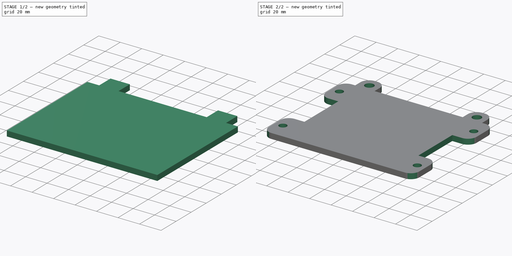
[diagram: build sequence overview — one tinted view per stage of 2, left to right]
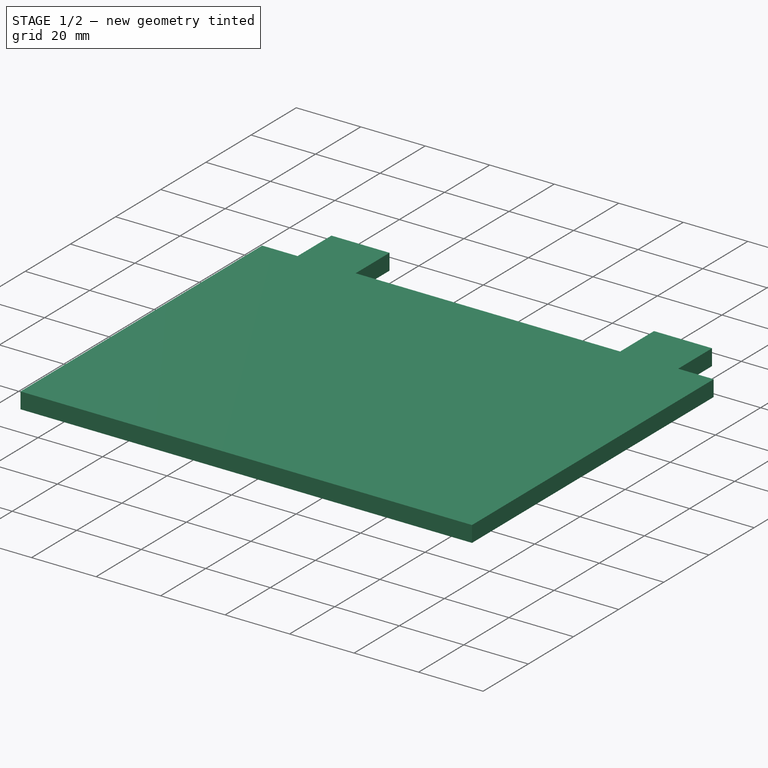
[diagram: stage 1 of 2 — iso view after this stage's code; geometry added in this stage tinted green]
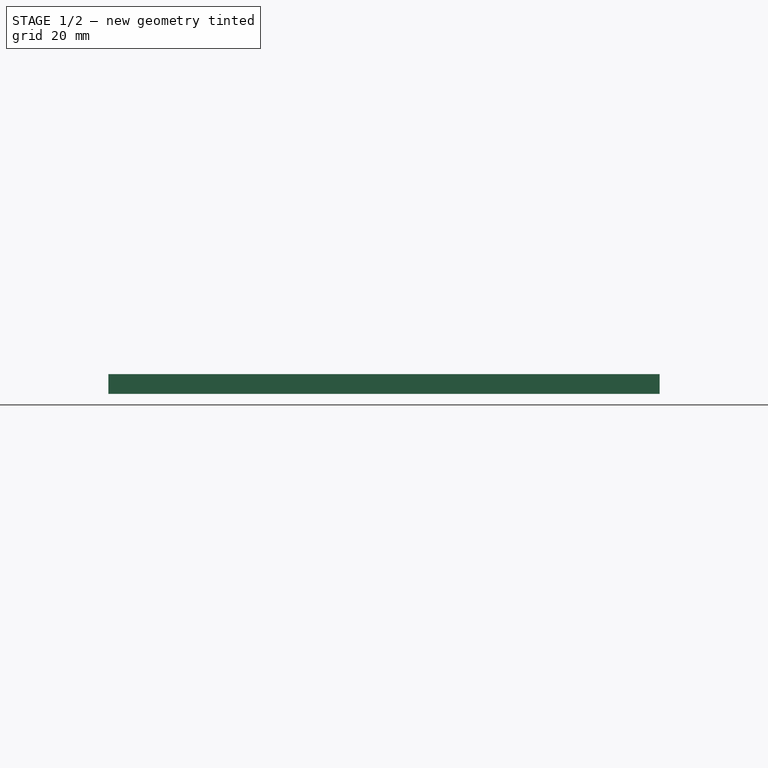
[diagram: stage 1 of 2 — front view after this stage's code; geometry added in this stage tinted green]
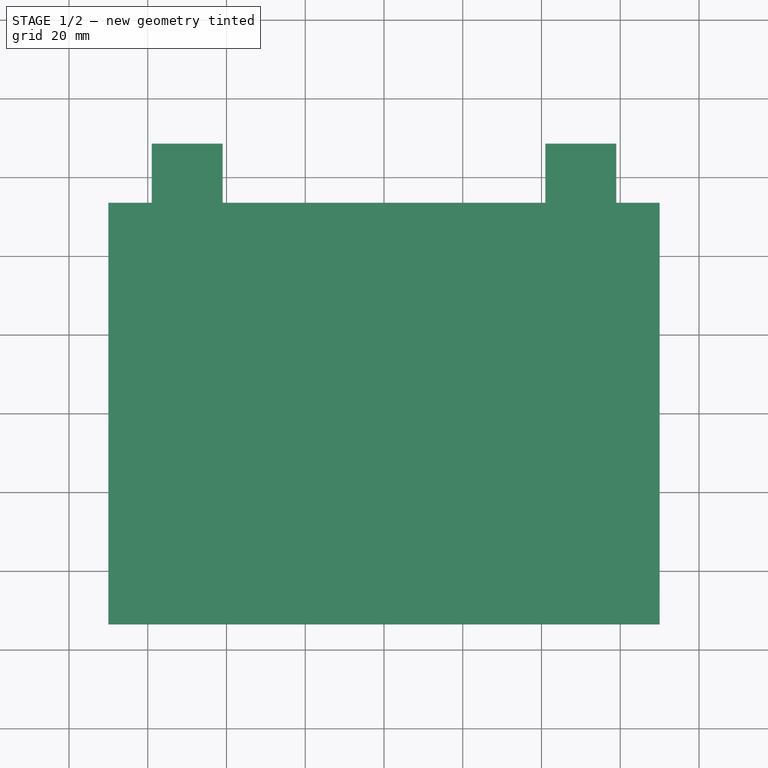
[diagram: stage 1 of 2 — top view after this stage's code; geometry added in this stage tinted green]
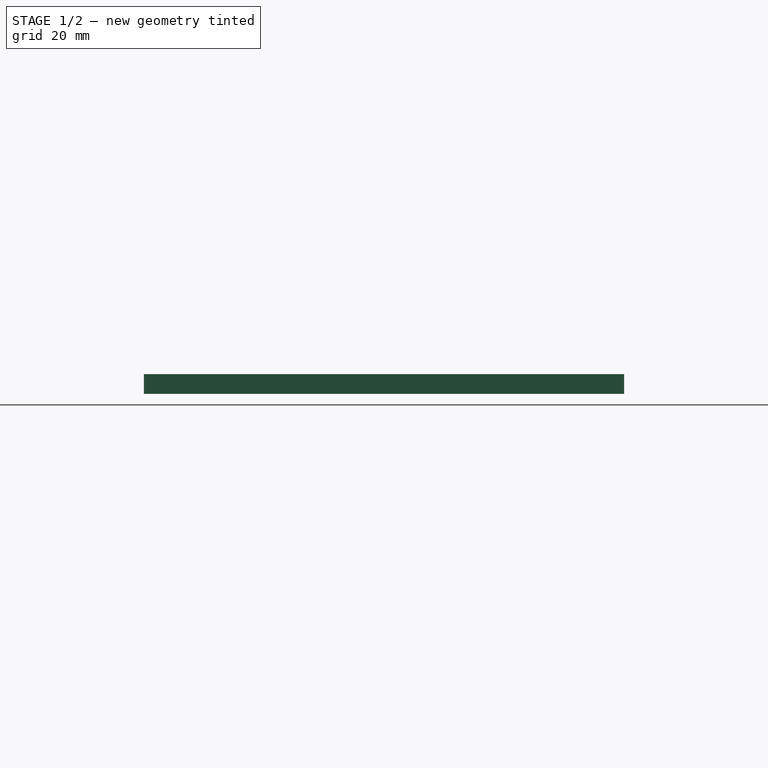
[diagram: stage 1 of 2 — right view after this stage's code; geometry added in this stage tinted green]
FCSTD DOCUMENT  (FreeCAD 0.20R29410 (Git))
Label: LSS-B
License: All rights reserved
LicenseURL: http://en.wikipedia.org/wiki/All_rights_reserved
objects: Sketcher::SketchObject×3, PartDesign::Pad×2, PartDesign::Pocket×1, PartDesign::Fillet×1, PartDesign::Body×1
note: 12 computed .brp shape members not serialized (recipe doc carries the construction recipe); baked Part::Feature solids carry a one-line shape summary decoded from their .brp

FEATURE [Sketcher::SketchObject] Sketch
  FullyConstrained = true
  MapMode = 5
  Support = -> [XY_Plane]
  sketch-geometry (4):
    g0: LineSegment StartX=-70 StartY=53.5 StartZ=0 EndX=70 EndY=53.5 EndZ=0
    g1: LineSegment StartX=70 StartY=53.5 StartZ=0 EndX=70 EndY=-53.5 EndZ=0
    g2: LineSegment StartX=70 StartY=-53.5 StartZ=0 EndX=-70 EndY=-53.5 EndZ=0
    g3: LineSegment StartX=-70 StartY=-53.5 StartZ=0 EndX=-70 EndY=53.5 EndZ=0
  constraints (11):
    c: Coincident(g0,g1)
    c: Coincident(g1,g2)
    c: Coincident(g2,g3)
    c: Coincident(g3,g0)
    c: Horizontal(g0)
    c: Horizontal(g2)
    c: Vertical(g1)
    c: Vertical(g3)
    c: DistanceX(g0,g0) = 140
    c: DistanceY(g1,g1) = 107
    c: Symmetric(g0,g2,g-1)
FEATURE [PartDesign::Pad] Pad
  Direction = (0,0,1)
  Length = 5
  Length2 = 10
  Profile = -> Sketch
  ReferenceAxis = -> Sketch [N_Axis]
  Type = 0
FEATURE [Sketcher::SketchObject] Sketch001
  FullyConstrained = true
  MapMode = 5
  Placement = pos=(0,53.5,0) rot=(0,0.707107,0.707107;3.14159rad)
  Support = -> [Pad]
  expr: Constraints[19] = 8 + 5 + 5
  expr: Constraints[22] = 92 - 5 - 5
  sketch-geometry (8):
    g0: LineSegment StartX=-59 StartY=5 StartZ=0 EndX=-41 EndY=5 EndZ=0
    g1: LineSegment StartX=-41 StartY=5 StartZ=0 EndX=-41 EndY=0 EndZ=0
    g2: LineSegment StartX=-41 StartY=0 StartZ=0 EndX=-59 EndY=0 EndZ=0
    g3: LineSegment StartX=-59 StartY=0 StartZ=0 EndX=-59 EndY=5 EndZ=0
    g4: LineSegment StartX=41 StartY=5 StartZ=0 EndX=59 EndY=5 EndZ=0
    g5: LineSegment StartX=59 StartY=5 StartZ=0 EndX=59 EndY=0 EndZ=0
    g6: LineSegment StartX=59 StartY=0 StartZ=0 EndX=41 EndY=0 EndZ=0
    g7: LineSegment StartX=41 StartY=0 StartZ=0 EndX=41 EndY=5 EndZ=0
  constraints (23):
    c: Coincident(g0,g1)
    c: Coincident(g1,g2)
    c: Coincident(g2,g3)
    c: Coincident(g3,g0)
    c: Horizontal(g0)
    c: Horizontal(g2)
    c: Vertical(g1)
    c: Vertical(g3)
    c: Coincident(g4,g5)
    c: Coincident(g5,g6)
    c: Coincident(g6,g7)
    c: Coincident(g7,g4)
    c: Horizontal(g4)
    c: Horizontal(g6)
    c: Vertical(g5)
    c: Vertical(g7)
    c: Equal(g4,g0)
    c: Equal(g5,g1)
    c: DistanceY(g1,g1) = 5
    c: DistanceX(g0,g0) = 18
    c: Symmetric(g1,g6,g-1)
    c: Horizontal(g6,g1)
    c: DistanceX(g1,g6) = 82
FEATURE [PartDesign::Pad] Pad001
  BaseFeature = -> Pad
  Direction = (0,1,-2e-16)
  Length = 15
  Length2 = 10
  Profile = -> Sketch001
  ReferenceAxis = -> Sketch001 [N_Axis]
  Type = 0
  expr: Length = 8 + 5 + 2
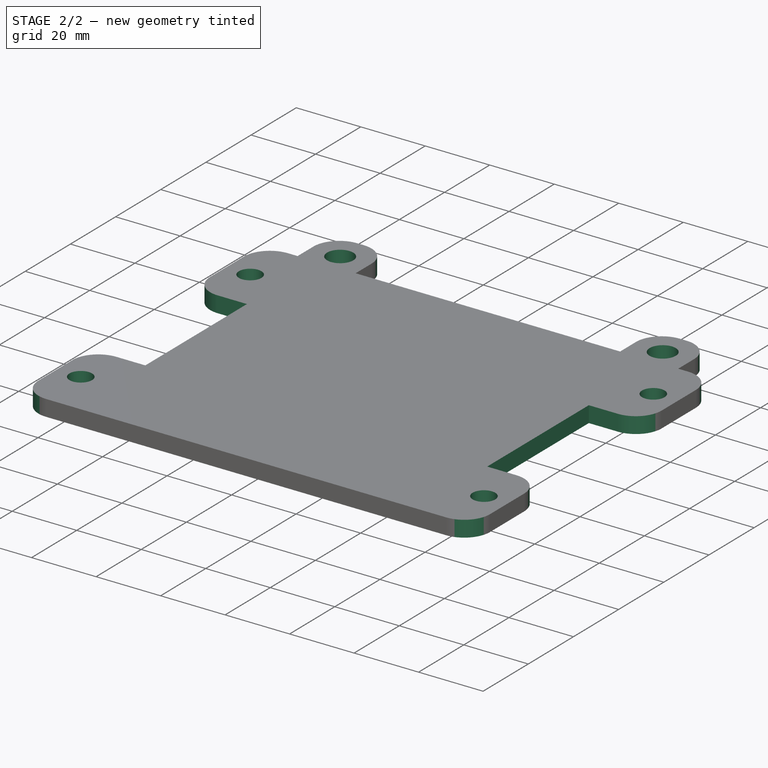
[diagram: stage 2 of 2 — iso view after this stage's code; geometry added in this stage tinted green]
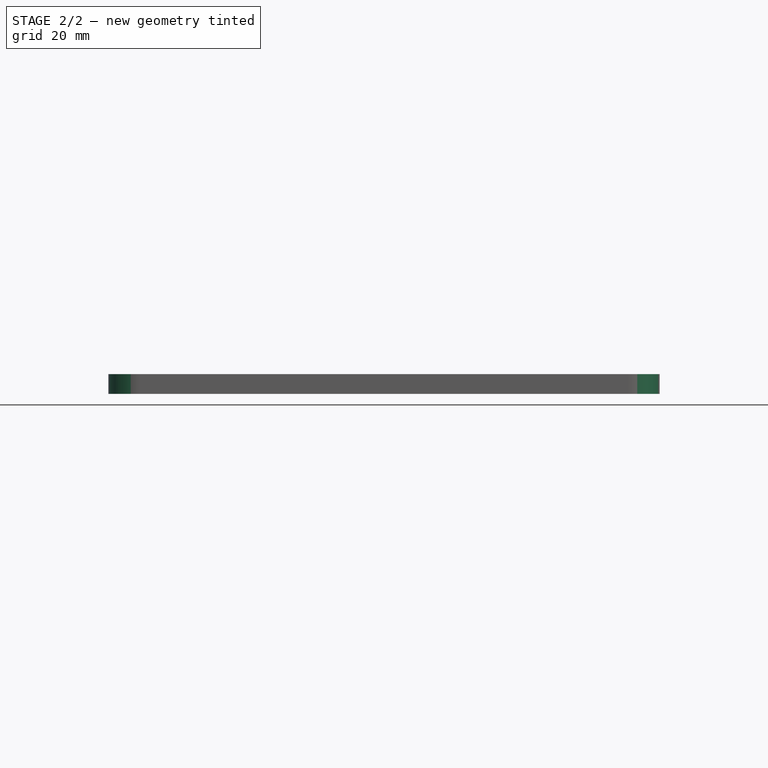
[diagram: stage 2 of 2 — front view after this stage's code; geometry added in this stage tinted green]
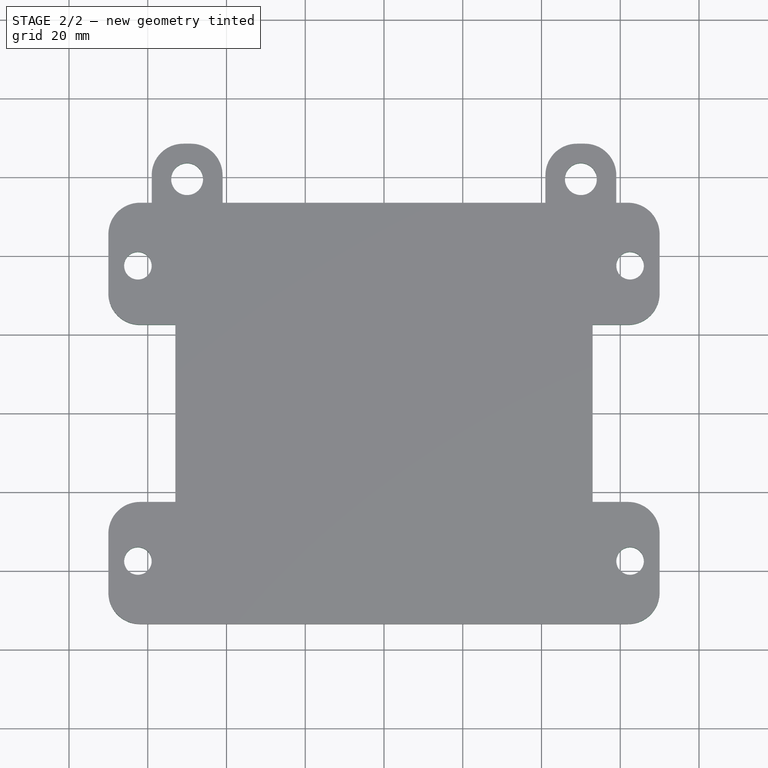
[diagram: stage 2 of 2 — top view after this stage's code; geometry added in this stage tinted green]
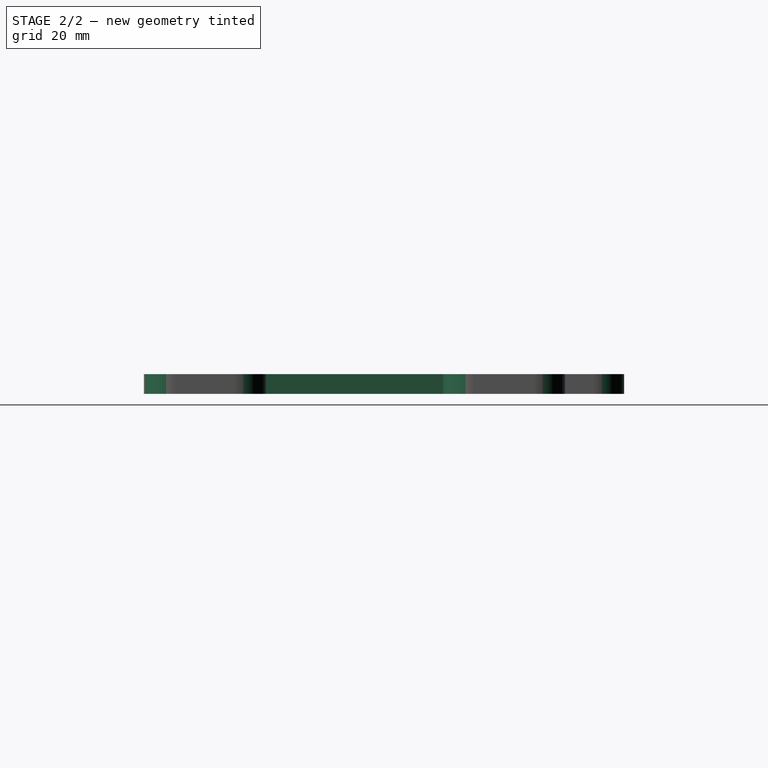
[diagram: stage 2 of 2 — right view after this stage's code; geometry added in this stage tinted green]
FEATURE [Sketcher::SketchObject] Sketch002
  FullyConstrained = true
  MapMode = 5
  Placement = pos=(0,1.1e-15,5) rot=(0,0,1;0rad)
  Support = -> [Pad001]
  expr: Constraints[3] = 92 + 4 + 4
  expr: Constraints[4] = 107 / 2 + 8 / 2 + 2
  sketch-geometry (14):
    g0: Circle CenterX=-50 CenterY=59.5 CenterZ=0 NormalX=0 NormalY=0 NormalZ=1 AngleXU=0 Radius=4.05
    g1: Circle CenterX=50 CenterY=59.5 CenterZ=0 NormalX=0 NormalY=0 NormalZ=1 AngleXU=0 Radius=4.05
    g2: Circle CenterX=-62.5 CenterY=37.5 CenterZ=0 NormalX=0 NormalY=0 NormalZ=1 AngleXU=0 Radius=3.5
    g3: Circle CenterX=-62.5 CenterY=-37.5 CenterZ=0 NormalX=0 NormalY=0 NormalZ=1 AngleXU=0 Radius=3.5
    g4: Circle CenterX=62.5 CenterY=-37.5 CenterZ=0 NormalX=0 NormalY=0 NormalZ=1 AngleXU=0 Radius=3.5
    g5: Circle CenterX=62.5 CenterY=37.5 CenterZ=0 NormalX=0 NormalY=0 NormalZ=1 AngleXU=0 Radius=3.5
    g6: LineSegment StartX=-70 StartY=22.5 StartZ=0 EndX=-53 EndY=22.5 EndZ=0
    g7: LineSegment StartX=-53 StartY=22.5 StartZ=0 EndX=-53 EndY=-22.5 EndZ=0
    g8: LineSegment StartX=-53 StartY=-22.5 StartZ=0 EndX=-70 EndY=-22.5 EndZ=0
    g9: LineSegment StartX=-70 StartY=-22.5 StartZ=0 EndX=-70 EndY=22.5 EndZ=0
    g10: LineSegment StartX=53 StartY=22.5 StartZ=0 EndX=70 EndY=22.5 EndZ=0
    g11: LineSegment StartX=70 StartY=22.5 StartZ=0 EndX=70 EndY=-22.5 EndZ=0
    g12: LineSegment StartX=70 StartY=-22.5 StartZ=0 EndX=53 EndY=-22.5 EndZ=0
    g13: LineSegment StartX=53 StartY=-22.5 StartZ=0 EndX=53 EndY=22.5 EndZ=0
  constraints (38):
    c: Symmetric(g1,g0,g-2)
    c: Equal(g1,g0)
    c: Diameter(g0) = 8.1
    c: DistanceX(g0,g1) = 100
    c: DistanceY(g-1,g1) = 59.5
    c: Equal(g5,g4)
    c: Equal(g4,g3)
    c: Equal(g3,g2)
    c: Diameter(g5) = 7
    c: Horizontal(g5,g2)
    c: Vertical(g5,g4)
    c: Symmetric(g3,g5,g-1)
    c: Vertical(g2,g3)
    c: Horizontal(g4,g3)
    c: DistanceX(g2,g5) = 125
    c: DistanceY(g4,g5) = 75
    c: Coincident(g6,g7)
    c: Coincident(g7,g8)
    c: Coincident(g8,g9)
    c: Coincident(g9,g6)
    c: Horizontal(g6)
    c: Horizontal(g8)
    c: Vertical(g7)
    c: Vertical(g9)
    c: Coincident(g10,g11)
    c: Coincident(g11,g12)
    c: Coincident(g12,g13)
    c: Coincident(g13,g10)
    c: Horizontal(g10)
    c: Horizontal(g12)
    c: Vertical(g13)
    c: Equal(g11,g7)
    c: Equal(g6,g10)
    c: DistanceY(g11,g11) = 45
    c: DistanceX(g12,g12) = 17
    c: Symmetric(g10,g11,g-1)
    c: Symmetric(g10,g6,g-2)
    c: DistanceX(g6,g10) = 140
FEATURE [PartDesign::Pocket] Pocket
  BaseFeature = -> Pad001
  Direction = (0,-2e-16,-1)
  Length = 5
  Length2 = 5
  Profile = -> Sketch002
  ReferenceAxis = -> Sketch002 [N_Axis]
  Type = 1
FEATURE [PartDesign::Fillet] Fillet
  Base = -> Pocket [Edge81,Edge62,Edge61,Edge58,Edge56,Edge80,Edge74,Edge26,Edge4,Edge46,Edge64,Edge63]
  BaseFeature = -> Pocket
  Radius = 8
  SupportTransform = false
  UseAllEdges = false
FEATURE [PartDesign::Body] Body
  Group = -> [Sketch,Pad,Sketch001,Pad001,Sketch002,Pocket,Fillet]
  Origin = -> Origin
  Tip = -> Fillet
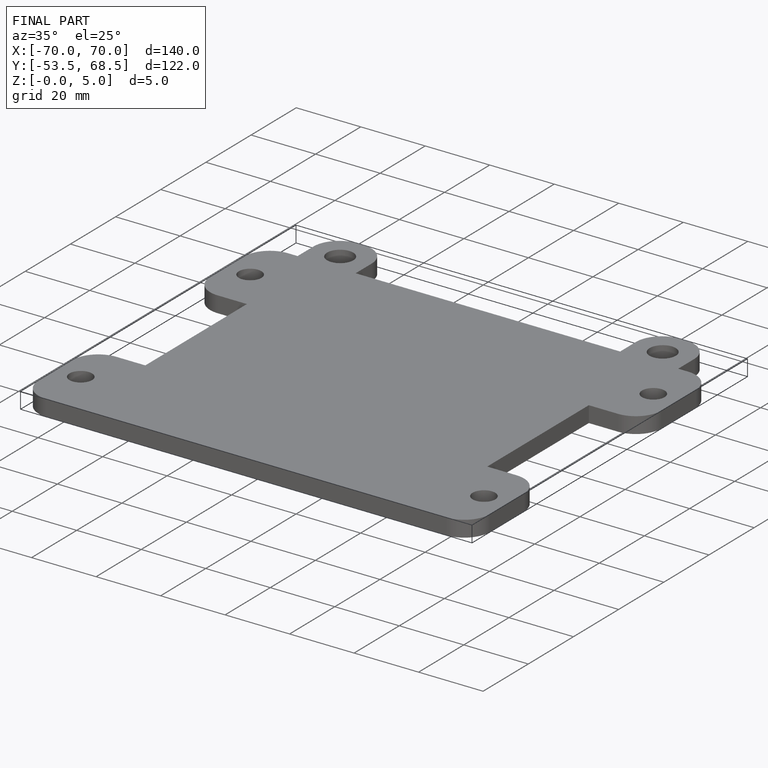
[diagram: finished part — iso view with bounding-box wireframe]
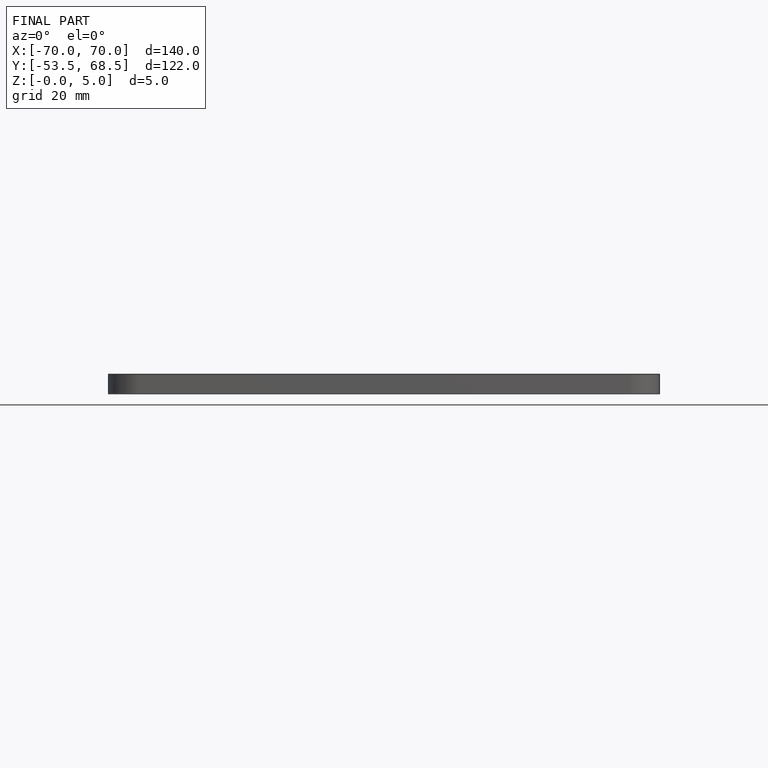
[diagram: finished part — front view with bounding-box wireframe]
